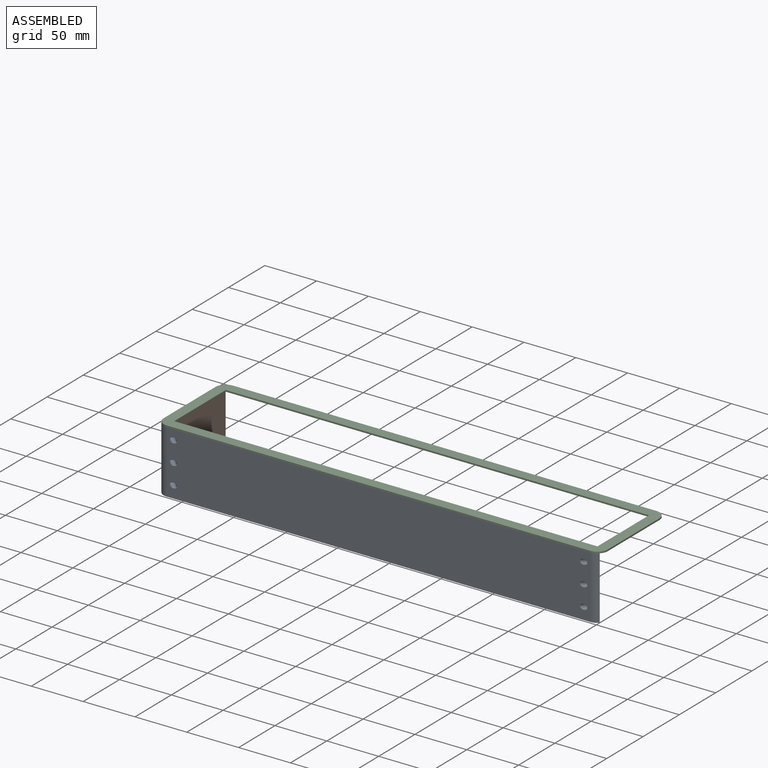
[diagram: assembled view]
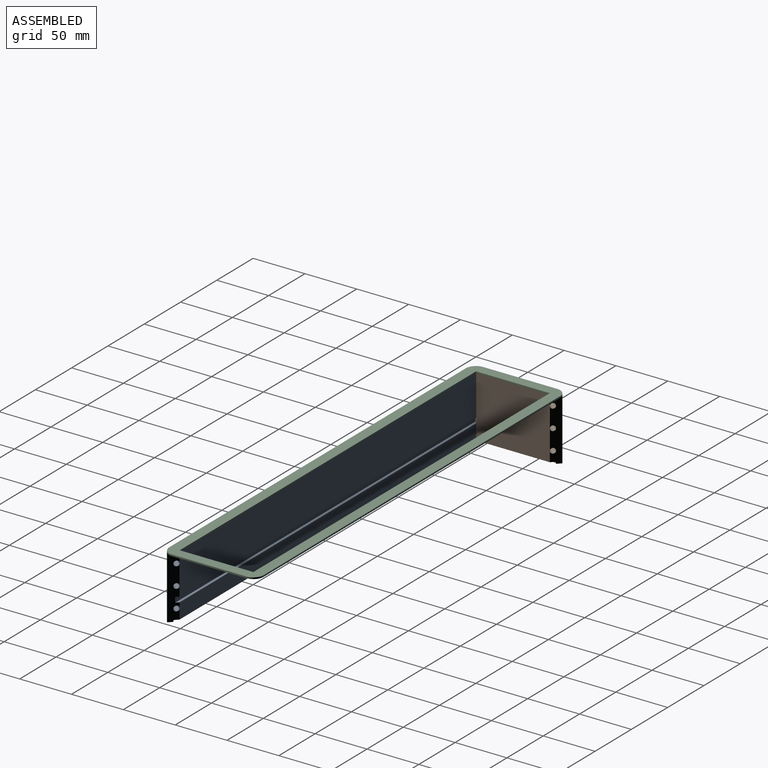
[diagram: assembled view, second angle]
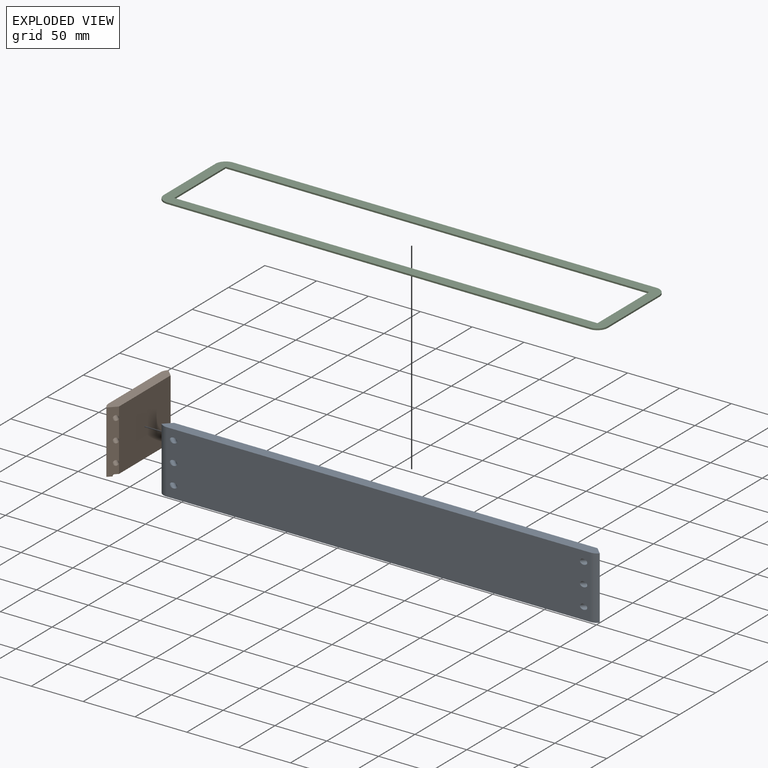
[diagram: exploded view]
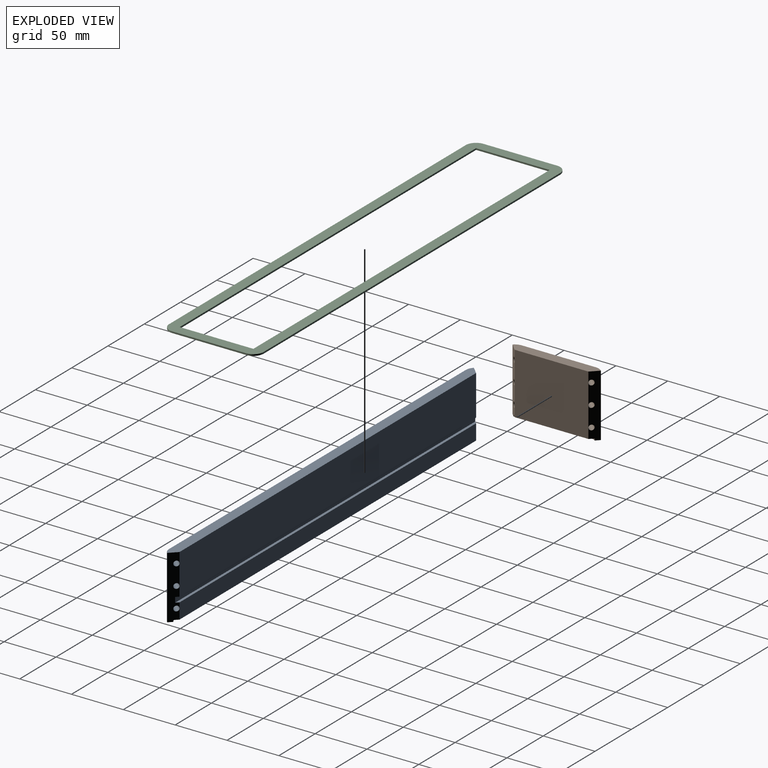
[diagram: exploded view, second angle]
FCSTD DOCUMENT  (FreeCAD 0.21R33771 (Git))
Label: Assembly
License: All rights reserved
LicenseURL: http://en.wikipedia.org/wiki/All_rights_reserved
objects: Sketcher::SketchObject×8, App::Part×7, PartDesign::Pocket×5, App::VRMLObject×4, PartDesign::Pad×3, PartDesign::Body×3, PartDesign::Mirrored×2, App::Link×2, Part::FeaturePython×2
note: 29 computed .brp shape members not serialized (recipe doc carries the construction recipe); baked Part::Feature solids carry a one-line shape summary decoded from their .brp

FEATURE [Sketcher::SketchObject] Sketch
  FullyConstrained = true
  MapMode = 5
  Placement = pos=(0,0,0) rot=(1,0,0;1.5708rad)
  Support = -> [XZ_Plane001]
  sketch-geometry (6):
    g0: LineSegment StartX=-204.25 StartY=0 StartZ=0 EndX=204.25 EndY=0 EndZ=0
    g1: LineSegment StartX=204.25 StartY=0 StartZ=0 EndX=211.321 EndY=7.07107 EndZ=0
    g2: LineSegment StartX=204.25 StartY=10 StartZ=0 EndX=-204.25 EndY=10 EndZ=0
    g3: LineSegment StartX=-211.321 StartY=7.07107 StartZ=0 EndX=-204.25 EndY=0 EndZ=0
    g4: ArcOfCircle CenterX=204.25 CenterY=0 CenterZ=0 NormalX=0 NormalY=0 NormalZ=1 AngleXU=0 Radius=10 StartAngle=0.785398 EndAngle=1.5708
    g5: ArcOfCircle CenterX=-204.25 CenterY=0 CenterZ=0 NormalX=0 NormalY=0 NormalZ=1 AngleXU=0 Radius=10 StartAngle=1.5708 EndAngle=2.35619
  constraints (15):
    c: Coincident(g1,g0)
    c: Coincident(g3,g0)
    c: Perpendicular(g1,g3)
    c: Distance(g0) = 408.5
    c: PointOnObject(g0,g-1)
    c: Distance(g2,g-1) = 10
    c: Horizontal(g2)
    c: Coincident(g4,g0)
    c: Coincident(g4,g1)
    c: Tangent(g4,g2) = -1.5708
    c: Angle(g1,g-1) = 2.35619
    c: Coincident(g5,g0)
    c: Coincident(g5,g3)
    c: Tangent(g5,g2) = -1.5708
    c: Symmetric(g0,g0,g-2)
FEATURE [PartDesign::Pad] Pad
  Direction = (0,-1,-2e-16)
  Length = 60.5
  Length2 = 10
  Placement = pos=(0,0,0) rot=(1,0,0;1.5708rad)
  Profile = -> Sketch
  ReferenceAxis = -> Sketch [N_Axis]
  Type = 0
FEATURE [Sketcher::SketchObject] Sketch001
  ExternalGeometry = -> [Pad]
  FullyConstrained = true
  MapMode = 5
  Placement = pos=(0,0,0) rot=(-1,0,0;1.5708rad)
  Support = -> [Pad]
  sketch-geometry (6):
    g0: LineSegment StartX=204.25 StartY=0 StartZ=0 EndX=-204.25 EndY=0 EndZ=0
    g1: LineSegment StartX=-204.25 StartY=0 StartZ=0 EndX=-207.786 EndY=-3.53553 EndZ=0
    g2: ArcOfCircle CenterX=-204.25 CenterY=0 CenterZ=0 NormalX=0 NormalY=0 NormalZ=1 AngleXU=0 Radius=5 StartAngle=3.92699 EndAngle=4.71239
    g3: LineSegment StartX=-204.25 StartY=-5 StartZ=0 EndX=204.25 EndY=-5 EndZ=0
    g4: ArcOfCircle CenterX=204.25 CenterY=0 CenterZ=0 NormalX=0 NormalY=0 NormalZ=1 AngleXU=0 Radius=5 StartAngle=4.71239 EndAngle=5.49779
    g5: LineSegment StartX=204.25 StartY=0 StartZ=0 EndX=207.786 EndY=-3.53553 EndZ=0
  constraints (14):
    c: Coincident(g0,g-5)
    c: Coincident(g0,g-4)
    c: Coincident(g1,g0)
    c: PointOnObject(g1,g-3)
    c: Coincident(g2,g0)
    c: Coincident(g2,g1)
    c: Horizontal(g3)
    c: Coincident(g4,g0)
    c: PointOnObject(g4,g-5)
    c: Coincident(g5,g0)
    c: Coincident(g5,g4)
    c: Radius(g4) = 5
    c: Tangent(g4,g3) = -1.5708
    c: Tangent(g3,g2) = -1.5708
FEATURE [PartDesign::Pocket] Pocket
  BaseFeature = -> Pad
  Direction = (0,-1,-2e-16)
  Length = 1.6
  Length2 = 5
  Placement = pos=(0,0,0) rot=(1,0,0;1.5708rad)
  Profile = -> Sketch001
  ReferenceAxis = -> Sketch001 [N_Axis]
  Type = 0
FEATURE [Sketcher::SketchObject] Sketch002
  ExternalGeometry = -> [Pocket]
  FullyConstrained = true
  MapMode = 5
  Placement = pos=(0,0,0) rot=(1,0,0;3.14159rad)
  Support = -> [Pocket]
  sketch-geometry (4):
    g0: LineSegment StartX=-211.321 StartY=21.6 StartZ=0 EndX=211.321 EndY=21.6 EndZ=0
    g1: LineSegment StartX=211.321 StartY=21.6 StartZ=0 EndX=211.321 EndY=16.6 EndZ=0
    g2: LineSegment StartX=211.321 StartY=16.6 StartZ=0 EndX=-211.321 EndY=16.6 EndZ=0
    g3: LineSegment StartX=-211.321 StartY=16.6 StartZ=0 EndX=-211.321 EndY=21.6 EndZ=0
  constraints (12):
    c: Coincident(g0,g1)
    c: Coincident(g1,g2)
    c: Coincident(g2,g3)
    c: Coincident(g3,g0)
    c: Horizontal(g0)
    c: Horizontal(g2)
    c: Vertical(g1)
    c: Vertical(g3)
    c: PointOnObject(g0,g-3)
    c: PointOnObject(g1,g-4)
    c: Distance(g-5,g0) = 20
    c: Distance(g1) = 5
FEATURE [PartDesign::Pocket] Pocket001
  BaseFeature = -> Pocket
  Direction = (0,-2e-16,1)
  Length = 2.5
  Length2 = 5
  Placement = pos=(0,0,0) rot=(1,0,0;1.5708rad)
  Profile = -> Sketch002
  ReferenceAxis = -> Sketch002 [N_Axis]
  Type = 0
FEATURE [Sketcher::SketchObject] Sketch003
  ExternalGeometry = -> [Pocket001]
  FullyConstrained = true
  MapMode = 5
  Placement = pos=(-102.125,-2.27e-14,-102.125) rot=(0.92388,0,-0.382683;3.14159rad)
  Support = -> [Pocket001]
  sketch-geometry (6):
    g0: Circle CenterX=-146.927 CenterY=50.6833 CenterZ=0 NormalX=0 NormalY=0 NormalZ=1 AngleXU=0 Radius=2.5
    g1: LineSegment StartX=-146.927 StartY=60.5 StartZ=0 EndX=-146.927 EndY=40.8667 EndZ=0
    g2: LineSegment StartX=-146.927 StartY=40.8667 StartZ=0 EndX=-146.927 EndY=21.2333 EndZ=0
    g3: LineSegment StartX=-146.927 StartY=21.2333 StartZ=0 EndX=-146.927 EndY=1.6 EndZ=0
    g4: Circle CenterX=-146.927 CenterY=31.05 CenterZ=0 NormalX=0 NormalY=0 NormalZ=1 AngleXU=0 Radius=2.5
    g5: Circle CenterX=-146.927 CenterY=11.4167 CenterZ=0 NormalX=0 NormalY=0 NormalZ=1 AngleXU=0 Radius=2.5
  constraints (16):
    c: PointOnObject(g1,g-3)
    c: Vertical(g1)
    c: Coincident(g2,g1)
    c: Vertical(g2)
    c: Coincident(g3,g2)
    c: PointOnObject(g3,g-4)
    c: Vertical(g3)
    c: Equal(g1,g2)
    c: Equal(g2,g3)
    c: Equal(g0,g4)
    c: Equal(g4,g5)
    c: Diameter(g0) = 5
    c: Symmetric(g1,g1,g0)
    c: Symmetric(g1,g2,g4)
    c: Symmetric(g2,g3,g5)
    c: Distance(g1,g-3) = 2.5
FEATURE [PartDesign::Pocket] Pocket002
  BaseFeature = -> Pocket001
  Direction = (0.707107,-2e-16,0.707107)
  Length = 5
  Length2 = 5
  Placement = pos=(0,0,0) rot=(1,0,0;1.5708rad)
  Profile = -> Sketch003
  ReferenceAxis = -> Sketch003 [N_Axis]
  Type = 2
FEATURE [PartDesign::Mirrored] Mirrored
  BaseFeature = -> Pocket002
  MirrorPlane = -> YZ_Plane001
  Originals = -> [Pocket002]
  Placement = pos=(0,0,0) rot=(1,0,0;1.5708rad)
FEATURE [PartDesign::Body] Body
  Group = -> [Sketch,Pad,Sketch001,Pocket,Sketch002,Pocket001,Sketch003,Pocket002,Mirrored]
  Origin = -> Origin001
  Tip = -> Mirrored
FEATURE [App::Part] Part
  Group = -> [Body]
  Origin = -> Origin
  Placement = pos=(-153.15,71.15,0) rot=(1,0,0;4.71239rad)
FEATURE [App::VRMLObject] RearPanel001
FEATURE [App::Part] Part001
  Group = -> [RearPanel001]
  Origin = -> Origin002
  Placement = pos=(0,0,0.8) rot=(0,0,1;0rad)
FEATURE [App::Link] Link  label="Part005"
  LinkPlacement = pos=(-153.15,0,0) rot=(0,0.707107,-0.707107;3.14159rad)
  LinkedObject = -> Part
  Placement = pos=(-153.15,0,0) rot=(0,0.707107,-0.707107;3.14159rad)
FEATURE [Sketcher::SketchObject] Sketch004
  FullyConstrained = true
  MapMode = 5
  Support = -> [XY_Plane007]
  sketch-geometry (6):
    g0: LineSegment StartX=0 StartY=35.56 StartZ=0 EndX=0 EndY=-35.56 EndZ=0
    g1: LineSegment StartX=10 StartY=35.56 StartZ=0 EndX=10 EndY=-35.56 EndZ=0
    g2: ArcOfCircle CenterX=0 CenterY=35.56 CenterZ=0 NormalX=0 NormalY=0 NormalZ=1 AngleXU=0 Radius=10 StartAngle=2e-16 EndAngle=0.785398
    g3: LineSegment StartX=7.07107 StartY=42.6311 StartZ=0 EndX=0 EndY=35.56 EndZ=0
    g4: LineSegment StartX=0 StartY=-35.56 StartZ=0 EndX=7.07107 EndY=-42.6311 EndZ=0
    g5: ArcOfCircle CenterX=0 CenterY=-35.56 CenterZ=0 NormalX=0 NormalY=0 NormalZ=1 AngleXU=0 Radius=10 StartAngle=5.49779 EndAngle=6.28319
  constraints (15):
    c: PointOnObject(g0,g-2)
    c: Vertical(g1)
    c: Coincident(g2,g0)
    c: Coincident(g3,g2)
    c: Coincident(g3,g0)
    c: Coincident(g4,g0)
    c: Coincident(g5,g0)
    c: Coincident(g5,g4)
    c: Tangent(g5,g1) = 1.5708
    c: Tangent(g2,g1) = 1.5708
    c: Angle(g0,g3) = 2.35619
    c: Distance(g1,g-2) = 10
    c: Symmetric(g0,g0,g-1)
    c: Distance(g0) = 71.12
    c: Perpendicular(g4,g3)
FEATURE [PartDesign::Pad] Pad001
  Direction = (0,0,1)
  Length = 60.5
  Length2 = 10
  Profile = -> Sketch004
  ReferenceAxis = -> Sketch004 [N_Axis]
  Type = 0
FEATURE [Sketcher::SketchObject] Sketch005
  ExternalGeometry = -> [Pad001]
  FullyConstrained = true
  MapMode = 5
  Placement = pos=(0,0,0) rot=(1,0,0;3.14159rad)
  Support = -> [Pad001]
  sketch-geometry (6):
    g0: ArcOfCircle CenterX=0 CenterY=35.56 CenterZ=0 NormalX=0 NormalY=0 NormalZ=1 AngleXU=0 Radius=5 StartAngle=0 EndAngle=0.785398
    g1: ArcOfCircle CenterX=0 CenterY=-35.56 CenterZ=0 NormalX=0 NormalY=0 NormalZ=1 AngleXU=0 Radius=5 StartAngle=5.49779 EndAngle=6.28319
    g2: LineSegment StartX=0 StartY=-35.56 StartZ=0 EndX=3.53553 EndY=-39.0955 EndZ=0
    g3: LineSegment StartX=5 StartY=-35.56 StartZ=0 EndX=5 EndY=35.56 EndZ=0
    g4: LineSegment StartX=0 StartY=35.56 StartZ=0 EndX=0 EndY=-35.56 EndZ=0
    g5: LineSegment StartX=0 StartY=35.56 StartZ=0 EndX=3.53553 EndY=39.0955 EndZ=0
  constraints (14):
    c: Coincident(g0,g-4)
    c: PointOnObject(g0,g-3)
    c: Coincident(g1,g-5)
    c: PointOnObject(g1,g-5)
    c: Coincident(g2,g1)
    c: Coincident(g2,g1)
    c: Vertical(g3)
    c: Coincident(g4,g0)
    c: Coincident(g4,g1)
    c: Coincident(g5,g0)
    c: Coincident(g5,g0)
    c: Distance(g0,g-2) = 5
    c: Tangent(g3,g0) = -1.5708
    c: Tangent(g3,g1) = -1.5708
FEATURE [PartDesign::Pocket] Pocket003
  BaseFeature = -> Pad001
  Direction = (0,0,1)
  Length = 1.75
  Length2 = 5
  Profile = -> Sketch005
  ReferenceAxis = -> Sketch005 [N_Axis]
  Type = 0
FEATURE [Sketcher::SketchObject] Sketch006
  ExternalGeometry = -> [Pocket003]
  FullyConstrained = true
  MapMode = 5
  Placement = pos=(-17.78,-17.78,0) rot=(0.862856,-0.357407,-0.357407;1.71777rad)
  Support = -> [Pocket003]
  sketch-geometry (6):
    g0: LineSegment StartX=27.6447 StartY=60.5 StartZ=0 EndX=27.6447 EndY=40.9167 EndZ=0
    g1: LineSegment StartX=27.6447 StartY=40.9167 StartZ=0 EndX=27.6447 EndY=21.3333 EndZ=0
    g2: LineSegment StartX=27.6447 StartY=21.3333 StartZ=0 EndX=27.6447 EndY=1.75 EndZ=0
    g3: Circle CenterX=27.6447 CenterY=50.7083 CenterZ=0 NormalX=0 NormalY=0 NormalZ=1 AngleXU=0 Radius=2.5
    g4: Circle CenterX=27.6447 CenterY=31.125 CenterZ=0 NormalX=0 NormalY=0 NormalZ=1 AngleXU=0 Radius=2.5
    g5: Circle CenterX=27.6447 CenterY=11.5417 CenterZ=0 NormalX=0 NormalY=0 NormalZ=1 AngleXU=0 Radius=2.5
  constraints (16):
    c: PointOnObject(g0,g-5)
    c: Vertical(g0)
    c: Coincident(g1,g0)
    c: Vertical(g1)
    c: Coincident(g2,g1)
    c: PointOnObject(g2,g-4)
    c: Vertical(g2)
    c: Equal(g0,g1)
    c: Equal(g1,g2)
    c: Symmetric(g2,g1,g5)
    c: Symmetric(g0,g1,g4)
    c: Symmetric(g0,g0,g3)
    c: Diameter(g3) = 5
    c: Equal(g3,g4)
    c: Equal(g4,g5)
    c: Distance(g0,g-5) = 2.5
FEATURE [PartDesign::Pocket] Pocket004
  BaseFeature = -> Pocket003
  Direction = (0.707107,0.707107,0)
  Length = 5
  Length2 = 5
  Profile = -> Sketch006
  ReferenceAxis = -> Sketch006 [N_Axis]
  Type = 1
FEATURE [PartDesign::Mirrored] Mirrored001
  BaseFeature = -> Pocket004
  MirrorPlane = -> XZ_Plane007
  Originals = -> [Pocket004]
FEATURE [PartDesign::Body] Body001
  Group = -> [Sketch004,Pad001,Sketch005,Pocket003,Sketch006,Pocket004,Mirrored001]
  Origin = -> Origin007
  Tip = -> Mirrored001
FEATURE [App::Part] Part005  label="Part006"
  Group = -> [Body001]
  Origin = -> Origin006
  Placement = pos=(51.1,35.585,0) rot=(0,0,1;0rad)
FEATURE [App::Link] Link001  label="Part007"
  LinkPlacement = pos=(-357.425,35.59,0) rot=(0,0,1;3.14159rad)
  LinkedObject = -> Part005
  Placement = pos=(-357.425,35.59,0) rot=(0,0,1;3.14159rad)
FEATURE [Sketcher::SketchObject] Sketch007
  FullyConstrained = true
  MapMode = 5
  Support = -> [XY_Plane008]
  sketch-geometry (15):
    g0: LineSegment StartX=204.14 StartY=-35.525 StartZ=0 EndX=204.14 EndY=35.525 EndZ=0
    g1: LineSegment StartX=204.14 StartY=35.525 StartZ=0 EndX=-204.14 EndY=35.525 EndZ=0
    g2: LineSegment StartX=-204.14 StartY=35.525 StartZ=0 EndX=-204.14 EndY=-35.525 EndZ=0
    g3: LineSegment StartX=-204.14 StartY=-35.525 StartZ=0 EndX=204.14 EndY=-35.525 EndZ=0
    g4: GeomPoint X=0 Y=0 Z=0
    g5: ArcOfCircle CenterX=-204.14 CenterY=35.525 CenterZ=0 NormalX=0 NormalY=0 NormalZ=1 AngleXU=0 Radius=10 StartAngle=1.5708 EndAngle=3.14159
    g6: LineSegment StartX=-204.14 StartY=45.525 StartZ=0 EndX=204.14 EndY=45.525 EndZ=0
    g7: ArcOfCircle CenterX=204.14 CenterY=35.525 CenterZ=0 NormalX=0 NormalY=0 NormalZ=1 AngleXU=0 Radius=10 StartAngle=4e-16 EndAngle=1.5708
    g8: LineSegment StartX=214.14 StartY=35.525 StartZ=0 EndX=214.14 EndY=-35.525 EndZ=0
    g9: ArcOfCircle CenterX=204.14 CenterY=-35.525 CenterZ=0 NormalX=0 NormalY=0 NormalZ=1 AngleXU=0 Radius=10 StartAngle=4.71239 EndAngle=6.28319
    g10: LineSegment StartX=204.14 StartY=-45.525 StartZ=0 EndX=-204.14 EndY=-45.525 EndZ=0
    g11: ArcOfCircle CenterX=-204.14 CenterY=-35.525 CenterZ=0 NormalX=0 NormalY=0 NormalZ=1 AngleXU=0 Radius=10 StartAngle=3.14159 EndAngle=4.71239
    g12: LineSegment StartX=-214.14 StartY=-35.525 StartZ=0 EndX=-214.14 EndY=35.525 EndZ=0
    g13: GeomPoint X=-214.14 Y=45.525 Z=0
    g14: GeomPoint X=214.14 Y=-45.525 Z=0
  constraints (34):
    c: Coincident(g0,g1)
    c: Coincident(g1,g2)
    c: Coincident(g2,g3)
    c: Coincident(g3,g0)
    c: Horizontal(g1)
    c: Horizontal(g3)
    c: Vertical(g0)
    c: Vertical(g2)
    c: Symmetric(g1,g0,g4)
    c: Coincident(g4,g-1)
    c: Tangent(g5,g6) = 1.5708
    c: Tangent(g6,g7) = 1.5708
    c: Tangent(g7,g8) = 1.5708
    c: Tangent(g8,g9) = 1.5708
    c: Tangent(g9,g10) = 1.5708
    c: Tangent(g10,g11) = 1.5708
    c: Tangent(g11,g12) = 1.5708
    c: Tangent(g12,g5) = 1.5708
    c: Horizontal(g6)
    c: Horizontal(g10)
    c: Vertical(g8)
    c: Vertical(g12)
    c: Equal(g5,g7)
    c: Equal(g7,g9)
    c: Equal(g9,g11)
    c: PointOnObject(g13,g6)
    c: PointOnObject(g13,g12)
    c: PointOnObject(g14,g8)
    c: PointOnObject(g14,g10)
    c: Coincident(g5,g1)
    c: Coincident(g9,g0)
    c: Distance(g0,g6) = 10
    c: Distance(g1) = 408.28
    c: Distance(g0) = 71.05
FEATURE [PartDesign::Pad] Pad002
  Direction = (0,0,1)
  Length = 1.5
  Length2 = 10
  Profile = -> Sketch007
  ReferenceAxis = -> Sketch007 [N_Axis]
  Type = 0
FEATURE [PartDesign::Body] Body002
  Group = -> [Sketch007,Pad002]
  Origin = -> Origin008
  Placement = pos=(-153.15,35.59,60.5) rot=(0,0,1;0rad)
  Tip = -> Pad002
FEATURE [App::Part] Part006  label="Part008"
  Group = -> [Body002]
  Origin = -> Origin009
FEATURE [App::VRMLObject] FrontPanel001
FEATURE [Part::FeaturePython] Array  # Draft array (typed FeaturePython)
  AlwaysSyncPlacement = false
  Angle = 360
  ArrayType = 0
  Axis = (0,0,1)
  Base = -> FrontPanel001
  Center = (0,0,0)
  Count = 8
  ExpandArray = false
  Fuse = false
  IntervalAxis = (0,0,0)
  IntervalX = (-51.05,0,0)
  IntervalY = (0,0,0)
  IntervalZ = (0,0,100)
  NumberCircles = 3
  NumberPolar = 5
  NumberX = 8
  NumberY = 1
  NumberZ = 1
  PlacementList = 8 placements: arithmetic series from (0,0,0) step (-51.05,0,0) to (-357.35,0,0)
  RadialDistance = 50
  ScaleList = (8) [(1,1,1),(1,1,1),(1,1,1),(1,1,1),(1,1,1),(1,1,1),(1,1,1),(1,1,1)]
  Symmetry = 1
  TangentialDistance = 25
FEATURE [App::Part] Part004
  Group = -> [Array]
  Origin = -> Origin005
  Placement = pos=(0,0,33.5) rot=(0,0,1;0rad)
FEATURE [App::VRMLObject] Controller_V2  label="Controller V2"
FEATURE [App::Part] Part002
  Group = -> [Controller_V2]
  Origin = -> Origin003
  Placement = pos=(0,0,9.92) rot=(0,0,1;0rad)
FEATURE [App::VRMLObject] Driver
FEATURE [Part::FeaturePython] Array001  # Draft array (typed FeaturePython)
  AlwaysSyncPlacement = false
  Angle = 360
  ArrayType = 0
  Axis = (0,0,1)
  Base = -> Driver
  Center = (0,0,0)
  Count = 8
  ExpandArray = false
  Fuse = false
  IntervalAxis = (0,0,0)
  IntervalX = (-51.05,0,0)
  IntervalY = (0,100,0)
  IntervalZ = (0,0,100)
  NumberCircles = 3
  NumberPolar = 5
  NumberX = 8
  NumberY = 1
  NumberZ = 1
  PlacementList = 8 placements: arithmetic series from (0,0,0) step (-51.05,0,0) to (-357.35,0,0)
  RadialDistance = 50
  ScaleList = (8) [(1,1,1),(1,1,1),(1,1,1),(1,1,1),(1,1,1),(1,1,1),(1,1,1),(1,1,1)]
  Symmetry = 1
  TangentialDistance = 25
FEATURE [App::Part] Part003
  Group = -> [Array001]
  Origin = -> Origin004
  Placement = pos=(0,0,22.5) rot=(0,0,1;0rad)
